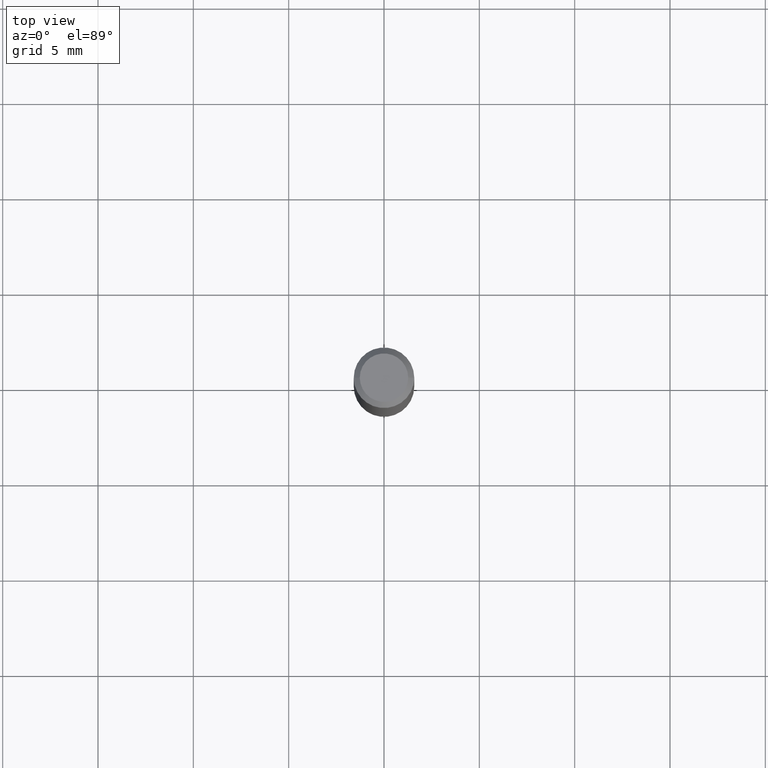
[diagram: clean part render]
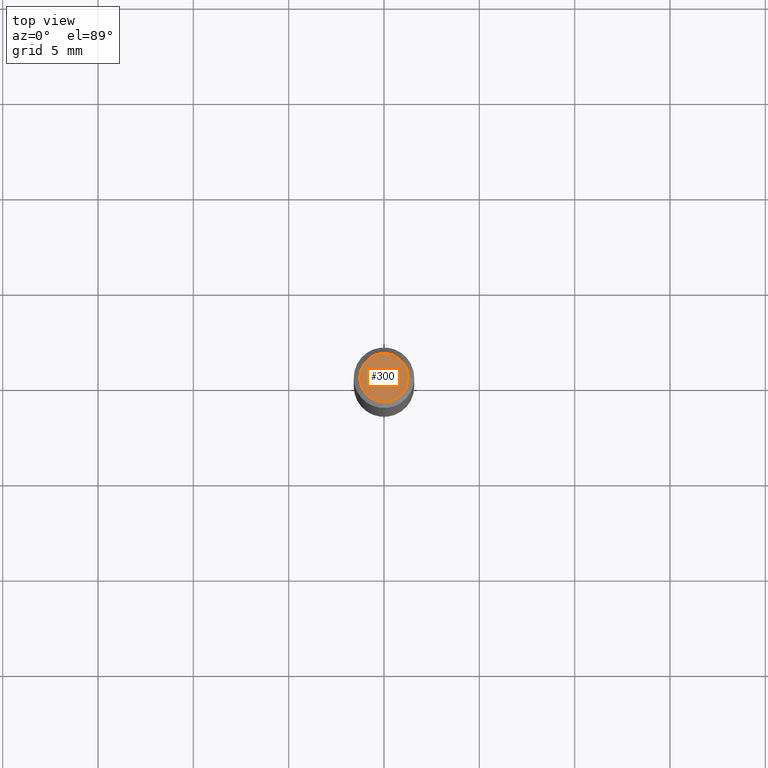
[diagram: same view with one face highlighted and labeled with its STEP entity id]
A machine part, top view. The second image highlights one B-rep face of the part: STEP entity #300.
In plain terms, the highlighted planar face has unit normal (0, -0, -1).
Its self-contained STEP definition (entity closure, byte-faithful):
#37 = DIRECTION ( 'NONE',  ( 1.000000000000000000, -6.982962677686265922E-15, 4.876194921942043128E-29 ) ) ;
#52 = AXIS2_PLACEMENT_3D ( 'NONE', #122, #316, #163 ) ;
#86 = VERTEX_POINT ( 'NONE', #243 ) ;
#119 = CIRCLE ( 'NONE', #247, 0.04999999999999999584 ) ;
#121 = VERTEX_POINT ( 'NONE', #225 ) ;
#122 = CARTESIAN_POINT ( 'NONE',  ( -4.132873053354867254E-48, 5.900647395337818946E-34, 1.690012582823346072E-19 ) ) ;
#156 = DIRECTION ( 'NONE',  ( -2.445468806185136597E-29, 3.491481338843145583E-15, 1.000000000000000000 ) ) ;
#158 = FACE_OUTER_BOUND ( 'NONE', #483, .T. ) ;
#160 = DIRECTION ( 'NONE',  ( -2.445468806185136597E-29, 3.491481338843145583E-15, 1.000000000000000000 ) ) ;
#163 = DIRECTION ( 'NONE',  ( -1.000000000000000000, 6.982962677686265922E-15, -4.876176775795935793E-29 ) ) ;
#177 = ORIENTED_EDGE ( 'NONE', *, *, #332, .T. ) ;
#198 = ORIENTED_EDGE ( 'NONE', *, *, #411, .T. ) ;
#202 = PLANE ( 'NONE',  #52 ) ;
#225 = CARTESIAN_POINT ( 'NONE',  ( 0.04999999999999999584, -4.077247707424184705E-16, 3.380025165673154903E-19 ) ) ;
#237 = AXIS2_PLACEMENT_3D ( 'NONE', #490, #160, #347 ) ;
#243 = CARTESIAN_POINT ( 'NONE',  ( -0.04999999999999999584, 3.709698922520826725E-16, 3.380025165621512536E-19 ) ) ;
#247 = AXIS2_PLACEMENT_3D ( 'NONE', #265, #156, #37 ) ;
#265 = CARTESIAN_POINT ( 'NONE',  ( -8.265746106709734507E-48, 1.180129479067563789E-33, 3.380025165646692144E-19 ) ) ;
#300 = ADVANCED_FACE ( 'NONE', ( #158 ), #202, .F. ) ;
#316 = DIRECTION ( 'NONE',  ( 2.438088387897960049E-29, -3.491481338843145188E-15, -1.000000000000000000 ) ) ;
#332 = EDGE_CURVE ( 'NONE', #86, #121, #119, .T. ) ;
#347 = DIRECTION ( 'NONE',  ( 1.000000000000000000, -6.982962677686265922E-15, 4.876194921942043128E-29 ) ) ;
#407 = CIRCLE ( 'NONE', #237, 0.04999999999999999584 ) ;
#411 = EDGE_CURVE ( 'NONE', #121, #86, #407, .T. ) ;
#483 = EDGE_LOOP ( 'NONE', ( #177, #198 ) ) ;
#490 = CARTESIAN_POINT ( 'NONE',  ( -8.265746106709734507E-48, 1.180129479067563789E-33, 3.380025165646692144E-19 ) ) ;